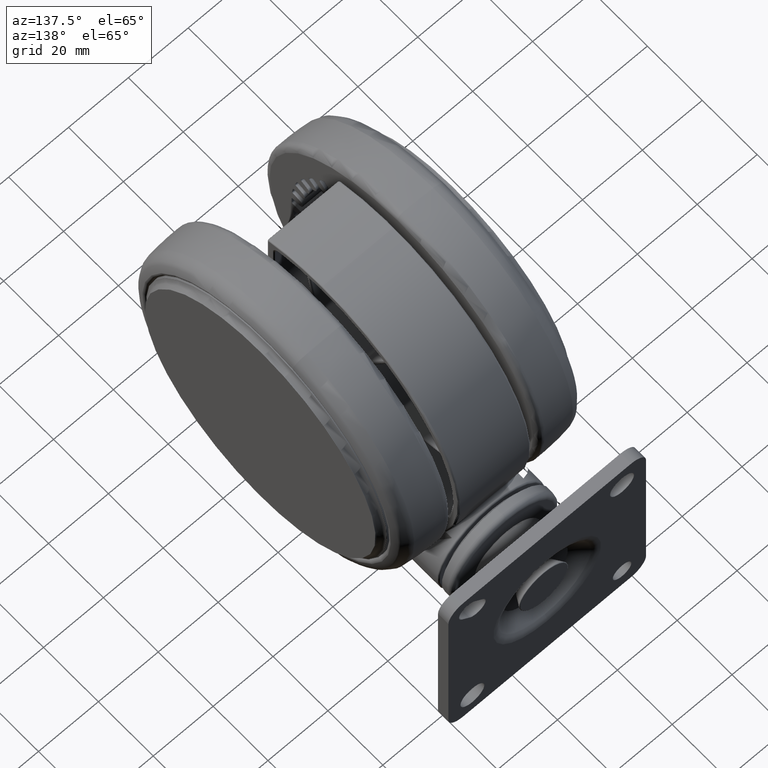
[diagram: clean part render]
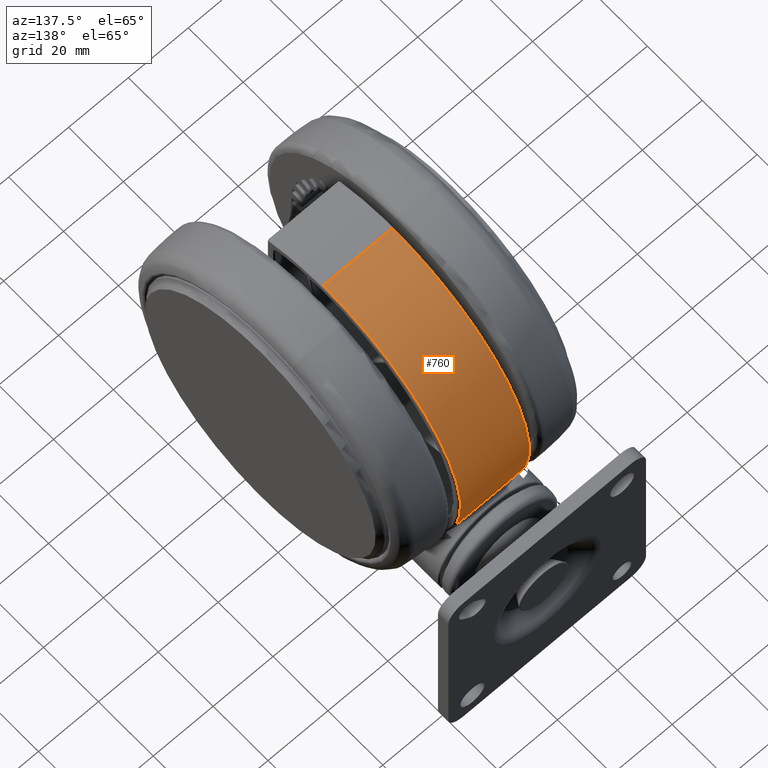
[diagram: same view with one face highlighted and labeled with its STEP entity id]
A machine part, auxiliary view. The second image highlights one B-rep face of the part: STEP entity #760.
In plain terms, the highlighted cylindrical surface (partial cylindrical patch) has radius 50 mm, axis along (-1, 0, 0).
Its self-contained STEP definition (entity closure, byte-faithful):
#99 = CARTESIAN_POINT ( 'NONE',  ( 5.573689077339506200, 49.68815687180960300, -30.33796310750000900 ) ) ;
#361 = CARTESIAN_POINT ( 'NONE',  ( 6.715352803925031600, 49.54742087974344900, -38.58145684551839600 ) ) ;
#624 = CARTESIAN_POINT ( 'NONE',  ( 9.080454597815558400, 49.16830652603816500, -42.20238626713093300 ) ) ;
#760 = ADVANCED_FACE ( 'NONE', ( #10034 ), #56290, .T. ) ;
#2882 = DIRECTION ( 'NONE',  ( 0.9778017858731170600, 0.2095320203294540300, 0.0000000000000000000 ) ) ;
#5664 = CARTESIAN_POINT ( 'NONE',  ( 9.439058294749875300, 49.10114089751083100, -22.59047606146551200 ) ) ;
#5933 = CARTESIAN_POINT ( 'NONE',  ( 7.139180776905849500, 49.48746857451928300, -25.79285557201443500 ) ) ;
#6205 = CARTESIAN_POINT ( 'NONE',  ( 5.460644587607958100, 49.70069263011001900, -31.18244368583368600 ) ) ;
#6463 = CARTESIAN_POINT ( 'NONE',  ( 7.035163011185383100, 49.50236282511654900, -39.20766725470798500 ) ) ;
#6720 = CARTESIAN_POINT ( 'NONE',  ( 9.148721550394689900, 49.15564958368228300, -42.28058972118033400 ) ) ;
#9221 = ORIENTED_EDGE ( 'NONE', *, *, #38595, .T. ) ;
#9638 = VERTEX_POINT ( 'NONE', #30524 ) ;
#10034 = FACE_OUTER_BOUND ( 'NONE', #55120, .T. ) ;
#11517 = CARTESIAN_POINT ( 'NONE',  ( 10.61229762997847300, 48.86239666709936800, -21.44149546362760700 ) ) ;
#11778 = CARTESIAN_POINT ( 'NONE',  ( 9.157027489915023500, 49.15410294759060200, -22.90557947036969800 ) ) ;
#12030 = CARTESIAN_POINT ( 'NONE',  ( 7.039148195746441200, 49.50179628975606500, -25.98125762081063400 ) ) ;
#12299 = CARTESIAN_POINT ( 'NONE',  ( 5.399272134487706200, 49.70738793202667700, -32.03059058159293900 ) ) ;
#12563 = CARTESIAN_POINT ( 'NONE',  ( 7.135280440671937900, 49.48803101442224100, -39.39626582296160300 ) ) ;
#12828 = CARTESIAN_POINT ( 'NONE',  ( 9.431858192397697800, 49.10252778170987400, -42.59850055744702500 ) ) ;
#17841 = CARTESIAN_POINT ( 'NONE',  ( 9.087486219821798300, 49.16700753006375600, -22.98485091176062800 ) ) ;
#18095 = CARTESIAN_POINT ( 'NONE',  ( 6.494305637396843500, 49.57659600805876500, -27.11674874267102500 ) ) ;
#18344 = CARTESIAN_POINT ( 'NONE',  ( 5.390103846193476000, 49.70837980910523900, -33.71715596417577400 ) ) ;
#18606 = CARTESIAN_POINT ( 'NONE',  ( 7.434722510990242800, 49.44425723919184200, -39.93330455670740500 ) ) ;
#18872 = CARTESIAN_POINT ( 'NONE',  ( 10.21708010947328500, 48.94621832877165000, -43.39765848453322400 ) ) ;
#19493 = CIRCLE ( 'NONE', #42379, 50.00000000000001400 ) ;
#19563 = ORIENTED_EDGE ( 'NONE', *, *, #77854, .T. ) ;
#20589 = LINE ( 'NONE', #58608, #50774 ) ;
#21515 = DIRECTION ( 'NONE',  ( -0.9778017858731170600, -0.2095320203294540300, 0.0000000000000000000 ) ) ;
#23864 = CARTESIAN_POINT ( 'NONE',  ( 8.863597207908519200, 49.20793587660144700, -23.24663255674945700 ) ) ;
#24128 = CARTESIAN_POINT ( 'NONE',  ( 6.112228146688206500, 49.62483058398244400, -28.15868799579522600 ) ) ;
#24392 = CARTESIAN_POINT ( 'NONE',  ( 5.868108211398364000, 49.65426769342644800, -36.21847427340161100 ) ) ;
#24654 = CARTESIAN_POINT ( 'NONE',  ( 7.952687397155327400, 49.36349348479245700, -40.74298911084679300 ) ) ;
#24670 = EDGE_CURVE ( 'NONE', #53727, #51642, #19493, .T. ) ;
#24922 = CARTESIAN_POINT ( 'NONE',  ( 11.02412313868733700, 48.76929557057231800, -44.10007711539682200 ) ) ;
#27545 = DIRECTION ( 'NONE',  ( -0.0000000000000000000, 0.0000000000000000000, -1.000000000000000000 ) ) ;
#29901 = CARTESIAN_POINT ( 'NONE',  ( 8.103992434423679100, 49.33957537540056400, -24.21961132721010300 ) ) ;
#30161 = CARTESIAN_POINT ( 'NONE',  ( 5.873331376388415000, 49.65365019122651800, -28.95399499275676200 ) ) ;
#30431 = CARTESIAN_POINT ( 'NONE',  ( 6.107469299612083600, 49.62541671439628000, -37.02098544901060300 ) ) ;
#30524 = CARTESIAN_POINT ( 'NONE',  ( 11.02412313868733700, 48.76929557057231800, -44.10007711539682200 ) ) ;
#30685 = CARTESIAN_POINT ( 'NONE',  ( 8.432936862847851600, 49.28375794840160000, -41.40930114192939700 ) ) ;
#35242 = CARTESIAN_POINT ( 'NONE',  ( -4.163336342344337000E-014, -0.0002389668261222610600, -21.09999999999989800 ) ) ;
#35993 = CARTESIAN_POINT ( 'NONE',  ( 7.511028054211142700, 49.43258184884965100, -25.13815349659703100 ) ) ;
#36250 = CARTESIAN_POINT ( 'NONE',  ( 5.676779089673518200, 49.67648465817605800, -29.78161378694237300 ) ) ;
#36510 = CARTESIAN_POINT ( 'NONE',  ( 6.489997433944868300, 49.57716103674889800, -38.06946516220767100 ) ) ;
#36763 = CARTESIAN_POINT ( 'NONE',  ( 8.968608166915165800, 49.18893559491747400, -42.07313978100339800 ) ) ;
#38595 = EDGE_CURVE ( 'NONE', #9638, #68095, #65510, .T. ) ;
#39024 = DIRECTION ( 'NONE',  ( 0.0000000000000000000, 0.0000000000000000000, 1.000000000000000000 ) ) ;
#40379 = AXIS2_PLACEMENT_3D ( 'NONE', #63738, #27545, #21515 ) ;
#41329 = DIRECTION ( 'NONE',  ( 0.9778017858731170600, 0.2095320203294540300, 0.0000000000000000000 ) ) ;
#41797 = CARTESIAN_POINT ( 'NONE',  ( 9.664468092460142000, 49.05721551635327400, -22.35408123725305900 ) ) ;
#42068 = CARTESIAN_POINT ( 'NONE',  ( 7.237644476340793900, 49.47319735900843800, -25.61239511933173000 ) ) ;
#42331 = CARTESIAN_POINT ( 'NONE',  ( 5.530670985999087500, 49.69294888986227200, -30.61626480638262700 ) ) ;
#42379 = AXIS2_PLACEMENT_3D ( 'NONE', #35242, #77553, #41329 ) ;
#42585 = CARTESIAN_POINT ( 'NONE',  ( 7.002758571675979500, 49.50695659482761400, -39.14519931595511100 ) ) ;
#42840 = CARTESIAN_POINT ( 'NONE',  ( 9.125367792061693400, 49.15999073408612900, -42.25395396040394800 ) ) ;
#46783 = CARTESIAN_POINT ( 'NONE',  ( -48.89008929365591200, -10.47683998329882500, -21.09999999999989800 ) ) ;
#47882 = CARTESIAN_POINT ( 'NONE',  ( 9.221737487224322300, 49.14201864999995500, -22.83259892790444600 ) ) ;
#48141 = CARTESIAN_POINT ( 'NONE',  ( 7.104869498438098700, 49.49240625724477400, -25.85675282915102400 ) ) ;
#48398 = CARTESIAN_POINT ( 'NONE',  ( 5.434362978475124200, 49.70356381038590100, -31.46530884087574300 ) ) ;
#48659 = CARTESIAN_POINT ( 'NONE',  ( 7.100911902748074500, 49.49297423372297500, -39.33226290517791300 ) ) ;
#48920 = CARTESIAN_POINT ( 'NONE',  ( 9.213682147536351500, 49.14352973349653600, -42.35422596130040100 ) ) ;
#50774 = VECTOR ( 'NONE', #72053, 1000.000000000000000 ) ;
#50785 = EDGE_CURVE ( 'NONE', #53727, #68095, #20589, .T. ) ;
#51564 = CARTESIAN_POINT ( 'NONE',  ( 11.02383812484584200, 48.76936318698979300, -21.09992135013673900 ) ) ;
#51642 = VERTEX_POINT ( 'NONE', #51564 ) ;
#53725 = CARTESIAN_POINT ( 'NONE',  ( 11.02383812484584200, 48.76936318698979300, -21.09992135013673900 ) ) ;
#53727 = VERTEX_POINT ( 'NONE', #46783 ) ;
#53970 = CARTESIAN_POINT ( 'NONE',  ( 9.132924415522557700, 49.15858756007272500, -22.93293122345572900 ) ) ;
#54232 = CARTESIAN_POINT ( 'NONE',  ( 6.747638344645706000, 49.54314222506874900, -26.54288809209010900 ) ) ;
#54496 = CARTESIAN_POINT ( 'NONE',  ( 5.390463214053450100, 49.70834083931161000, -32.31469230879290000 ) ) ;
#54755 = CARTESIAN_POINT ( 'NONE',  ( 7.233424313631150700, 49.47381426832760100, -39.57609923522150600 ) ) ;
#54986 = B_SPLINE_CURVE_WITH_KNOTS ( 'NONE', 3,
 ( #53725, #11517, #78034, #41797, #5664, #47882, #11778, #53970, #17841, #60073, #23864, #66092, #29901, #72189, #35993, #78279, #42068, #5933, #48141, #12030, #54232, #18095, #60331, #24128, #66354, #30161, #72446, #36250, #99, #42331, #6205, #48398, #12299, #54496, #18344, #60579, #24392, #66623, #30431, #72703, #36510, #361, #42585, #6463, #48659, #12563, #54755, #18606, #60845, #24654, #66885, #30685, #72964, #36763, #624, #42840, #6720, #48920, #12828, #54999, #18872, #61107, #24922 ),
 .UNSPECIFIED., .F., .F.,
 ( 4, 2, 1, 2, 2, 1, 2, 2, 2, 2, 2, 1, 2, 2, 2, 2, 2, 2, 2, 2, 2, 2, 2, 2, 2, 1, 2, 2, 1, 1, 2, 2, 1, 2, 4 ),
 ( 0.02933550306727925000, 0.08817897570038819900, 0.1176007120169426700, 0.1249561460960810900, 0.1286338631356503400, 0.1323115801752196000, 0.1470224483334965900, 0.2058659209666051100, 0.2352876572831593100, 0.2499985254414363900, 0.2573539595205749400, 0.2647093935997134600, 0.3235528662328228700, 0.3529746025493772900, 0.3823963388659318300, 0.4118180751824862500, 0.4412398114990406800, 0.4706615478155948800, 0.5000832841321489800, 0.6177702293983653400, 0.6471919657149198800, 0.6766137020314744200, 0.7354571746645832700, 0.7428126087437219000, 0.7501680428228605400, 0.7648789109811371400, 0.7943006472976910100, 0.8237223836142448800, 0.8531441199307986400, 0.8678549880890756900, 0.8715327051286450000, 0.8752104221682142100, 0.8825658562473525100, 0.9119875925639073800, 0.9708310651970170100 ),
 .UNSPECIFIED. ) ;
#54999 = CARTESIAN_POINT ( 'NONE',  ( 9.658222542622812800, 49.05844873734575600, -42.83687746565902200 ) ) ;
#55120 = EDGE_LOOP ( 'NONE', ( #75466, #55476, #19563, #9221 ) ) ;
#55476 = ORIENTED_EDGE ( 'NONE', *, *, #24670, .T. ) ;
#56290 = CYLINDRICAL_SURFACE ( 'NONE', #40379, 50.00000000000001400 ) ;
#58608 = CARTESIAN_POINT ( 'NONE',  ( -48.89008929365591200, -10.47683998329882500, -20.59999999999989800 ) ) ;
#60073 = CARTESIAN_POINT ( 'NONE',  ( 8.974362084416050300, 49.18788864851634200, -23.11496201873206900 ) ) ;
#60331 = CARTESIAN_POINT ( 'NONE',  ( 6.202057381374994600, 49.61371196633234600, -27.89639130409915100 ) ) ;
#60579 = CARTESIAN_POINT ( 'NONE',  ( 5.526711481007747100, 49.69413768351151400, -34.83252223977826400 ) ) ;
#60845 = CARTESIAN_POINT ( 'NONE',  ( 7.651021054089426300, 49.41114833632226300, -40.28312536909158600 ) ) ;
#61107 = CARTESIAN_POINT ( 'NONE',  ( 10.61043639496743800, 48.86281994654086000, -43.75641441600333100 ) ) ;
#63738 = CARTESIAN_POINT ( 'NONE',  ( -4.163336342344337000E-014, -0.0002389668261222610600, -20.59999999999989800 ) ) ;
#65510 = CIRCLE ( 'NONE', #75171, 50.00000000000001400 ) ;
#66092 = CARTESIAN_POINT ( 'NONE',  ( 8.428116643708346300, 49.28558130641442900, -23.77830488816612600 ) ) ;
#66354 = CARTESIAN_POINT ( 'NONE',  ( 5.947776899855663900, 49.64480923326424700, -28.68811305496078400 ) ) ;
#66623 = CARTESIAN_POINT ( 'NONE',  ( 5.942750267511109500, 49.64541141963717800, -36.48721923541042100 ) ) ;
#66885 = CARTESIAN_POINT ( 'NONE',  ( 8.110178255263832600, 49.33789825724020500, -40.96953215072814900 ) ) ;
#68095 = VERTEX_POINT ( 'NONE', #69278 ) ;
#69278 = CARTESIAN_POINT ( 'NONE',  ( -48.89008929365591200, -10.47683998329882500, -44.09999999999990200 ) ) ;
#72053 = DIRECTION ( 'NONE',  ( -0.0000000000000000000, 0.0000000000000000000, -1.000000000000000000 ) ) ;
#72189 = CARTESIAN_POINT ( 'NONE',  ( 7.654663168665099900, 49.41058095098065200, -24.90552384664205100 ) ) ;
#72446 = CARTESIAN_POINT ( 'NONE',  ( 5.736711901702200600, 49.66961976594979000, -29.50482016399373100 ) ) ;
#72703 = CARTESIAN_POINT ( 'NONE',  ( 6.197420290085490000, 49.61429162855300500, -37.28514673952452100 ) ) ;
#72964 = CARTESIAN_POINT ( 'NONE',  ( 8.683488478272547400, 49.24050961596061200, -41.73284462878798700 ) ) ;
#75171 = AXIS2_PLACEMENT_3D ( 'NONE', #75238, #39024, #2882 ) ;
#75238 = CARTESIAN_POINT ( 'NONE',  ( -4.163336342344337000E-014, -0.0002389668261222610600, -44.09999999999990200 ) ) ;
#75466 = ORIENTED_EDGE ( 'NONE', *, *, #50785, .F. ) ;
#77553 = DIRECTION ( 'NONE',  ( -0.0000000000000000000, -0.0000000000000000000, -1.000000000000000000 ) ) ;
#77854 = EDGE_CURVE ( 'NONE', #51642, #9638, #54986, .T. ) ;
#78034 = CARTESIAN_POINT ( 'NONE',  ( 10.22084608409759500, 48.94541907188835900, -21.79773150021794600 ) ) ;
#78279 = CARTESIAN_POINT ( 'NONE',  ( 7.304833202895818700, 49.46332581508517700, -25.49308618674599500 ) ) ;